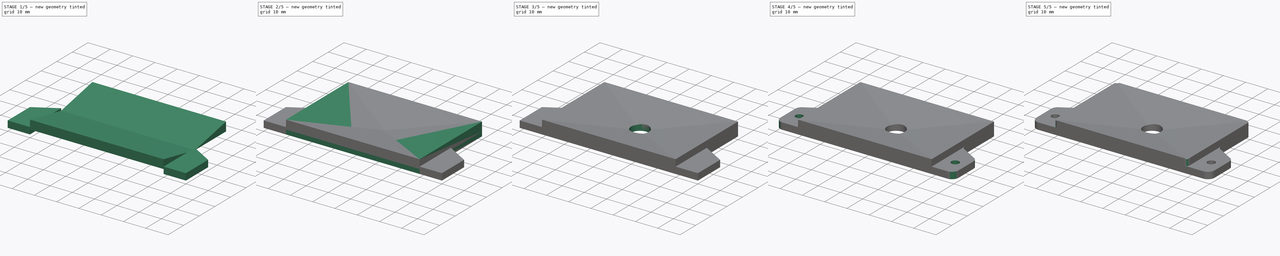
[diagram: build sequence overview — one tinted view per stage of 5, left to right]
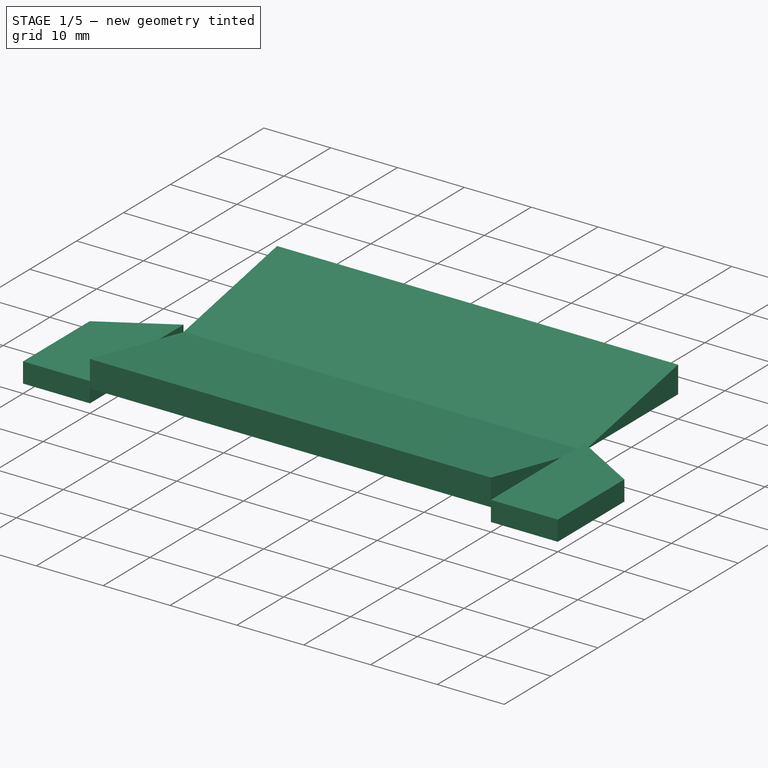
[diagram: stage 1 of 5 — iso view after this stage's code; geometry added in this stage tinted green]
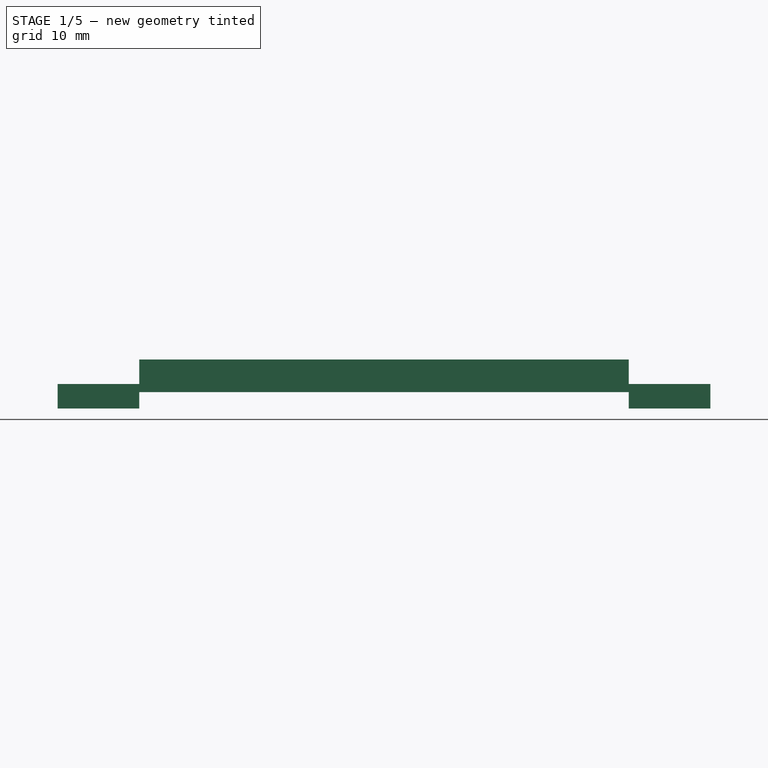
[diagram: stage 1 of 5 — front view after this stage's code; geometry added in this stage tinted green]
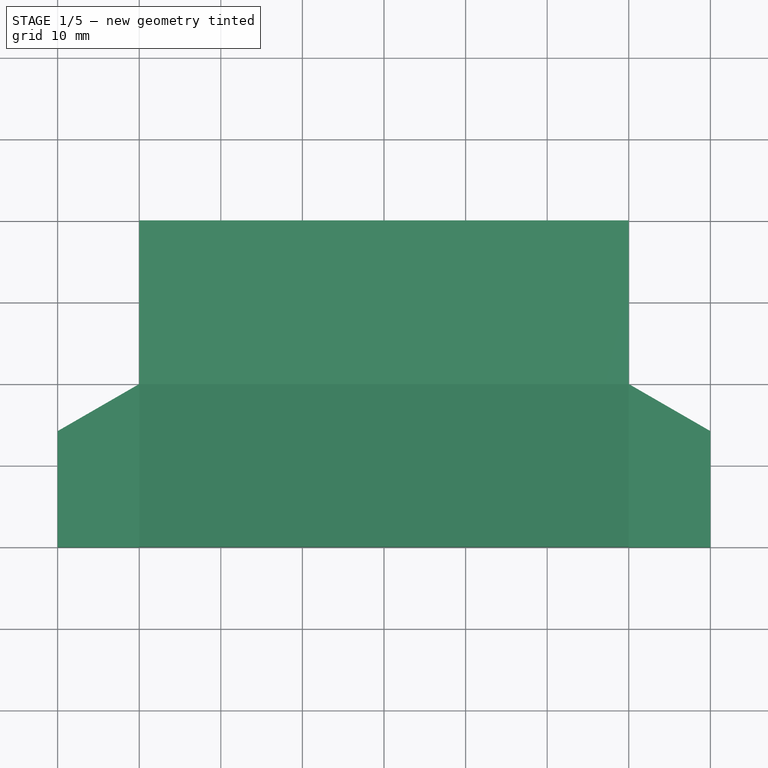
[diagram: stage 1 of 5 — top view after this stage's code; geometry added in this stage tinted green]
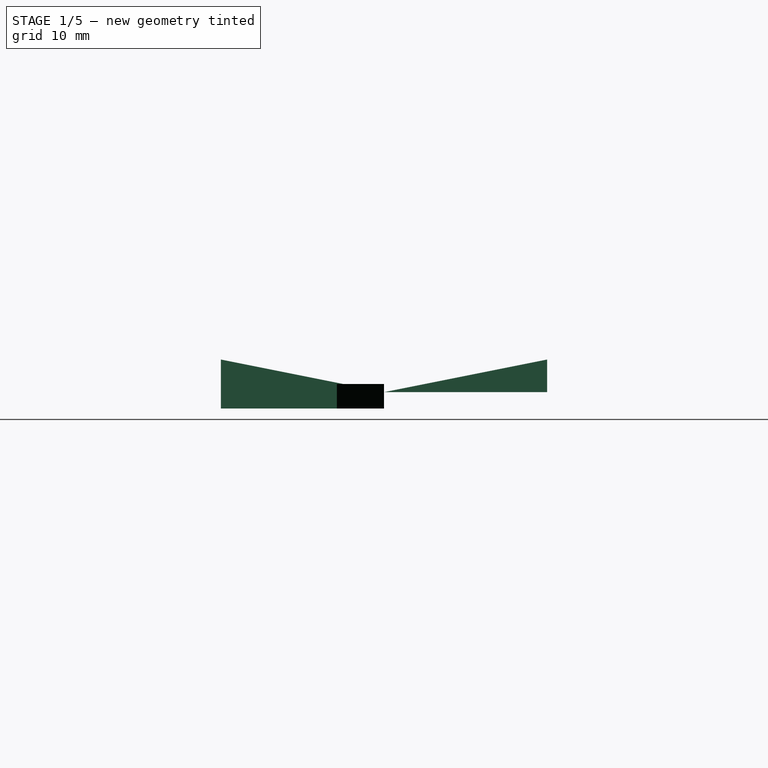
[diagram: stage 1 of 5 — right view after this stage's code; geometry added in this stage tinted green]
FCSTD DOCUMENT  (FreeCAD 0.18R4 (GitTag))
Label: Cameramodule_V03
License: All rights reserved
LicenseURL: http://en.wikipedia.org/wiki/All_rights_reserved
objects: PartDesign::Body×8, Sketcher::SketchObject×7, PartDesign::Pad×7, PartDesign::SubtractiveCylinder×7, PartDesign::Boolean×6, App::MeasureDistance×5, PartDesign::Fillet×2
note: 51 computed .brp shape members not serialized (recipe doc carries the construction recipe); baked Part::Feature solids carry a one-line shape summary decoded from their .brp

FEATURE [PartDesign::Body] Body002
  Group = -> [Sketch002,Pad002,Boolean001]
  Origin = -> Origin002
  Tip = -> Boolean001
FEATURE [Sketcher::SketchObject] Sketch003
  Placement = pos=(0,0,0) rot=(0.57735,0.57735,0.57735;2.0944rad)
  sketch-geometry (3):
    g0: LineSegment StartX=0 StartY=6 StartZ=0 EndX=0 EndY=2 EndZ=0
    g1: LineSegment StartX=0 StartY=2 StartZ=0 EndX=20 EndY=2 EndZ=0
    g2: LineSegment StartX=20 StartY=2 StartZ=0 EndX=0 EndY=6 EndZ=0
  constraints (9):
    c: Coincident(g0,g1)
    c: Coincident(g1,g2)
    c: Coincident(g2,g0)
    c: Vertical(g0)
    c: Horizontal(g1)
    c: PointOnObject(g0,g-2)
    c: Distance(g0) = 4
    c: Distance(g1) = 20
    c: Distance(g-1,g0) = 2
FEATURE [PartDesign::Pad] Pad003
  Length = 60
  Length2 = 100
  Placement = pos=(0,0,0) rot=(0.57735,0.57735,0.57735;2.0944rad)
  Profile = -> Sketch003
  Type = 0
FEATURE [Sketcher::SketchObject] Sketch004
  Placement = pos=(0,0,0) rot=(0.57735,0.57735,0.57735;2.0944rad)
  sketch-geometry (3):
    g0: LineSegment StartX=40 StartY=2 StartZ=0 EndX=40 EndY=6 EndZ=0
    g1: LineSegment StartX=40 StartY=6 StartZ=0 EndX=20 EndY=2 EndZ=0
    g2: LineSegment StartX=20 StartY=2 StartZ=0 EndX=40 EndY=2 EndZ=0
  constraints (9):
    c: Coincident(g0,g1)
    c: Coincident(g1,g2)
    c: Coincident(g2,g0)
    c: Vertical(g0)
    c: Horizontal(g2)
    c: Distance(g0) = 4
    c: Distance(g2) = 20
    c: DistanceX(g-2,g0) = 40
    c: DistanceY(g-1,g0) = 2
FEATURE [PartDesign::Pad] Pad004
  Length = 60
  Length2 = 100
  Placement = pos=(0,0,0) rot=(0.57735,0.57735,0.57735;2.0944rad)
  Profile = -> Sketch004
  Type = 0
FEATURE [PartDesign::Body] Body003
  Group = -> [Sketch003,Pad003,Boolean002,Boolean003,Cylinder]
  Origin = -> Origin003
  Tip = -> Cylinder
FEATURE [Sketcher::SketchObject] Sketch005
  sketch-geometry (4):
    g0: LineSegment StartX=60 StartY=0 StartZ=0 EndX=60 EndY=20 EndZ=0
    g1: LineSegment StartX=60 StartY=20 StartZ=0 EndX=70 EndY=14.2265 EndZ=0
    g2: LineSegment StartX=70 StartY=14.2265 StartZ=0 EndX=70 EndY=0 EndZ=0
    g3: LineSegment StartX=70 StartY=0 StartZ=0 EndX=60 EndY=0 EndZ=0
  constraints (12):
    c: Coincident(g0,g1)
    c: Coincident(g1,g2)
    c: Coincident(g2,g3)
    c: Coincident(g3,g0)
    c: Vertical(g0)
    c: Horizontal(g3)
    c: Vertical(g2)
    c: Angle(g1,g2) = 2.0944
    c: Distance(g-1,g0) = 60
    c: PointOnObject(g0,g-1)
    c: Distance(g0) = 20
    c: Distance(g3) = 10
FEATURE [PartDesign::Pad] Pad005
  Length = 3
  Length2 = 100
  Profile = -> Sketch005
  Type = 0
FEATURE [PartDesign::Body] Body006
  Group = -> [Sketch005,Pad005,Boolean004]
  Origin = -> Origin006
  Tip = -> Boolean004
FEATURE [Sketcher::SketchObject] Sketch006
  sketch-geometry (4):
    g0: LineSegment StartX=0 StartY=0 StartZ=0 EndX=-10 EndY=0 EndZ=0
    g1: LineSegment StartX=-10 StartY=0 StartZ=0 EndX=-10 EndY=14.2265 EndZ=0
    g2: LineSegment StartX=-10 StartY=14.2265 StartZ=0 EndX=0 EndY=20 EndZ=0
    g3: LineSegment StartX=0 StartY=20 StartZ=0 EndX=0 EndY=0 EndZ=0
  constraints (12):
    c: Coincident(g0,g1)
    c: Coincident(g1,g2)
    c: Coincident(g2,g3)
    c: Vertical(g1)
    c: Vertical(g3)
    c: Horizontal(g0)
    c: Coincident(g3,g0)
    c: Angle(g1,g2) = 2.0944
    c: Distance(g3) = 20
    c: Distance(g0) = 10
    c: PointOnObject(g0,g-1)
    c: PointOnObject(g2,g-2)
FEATURE [PartDesign::Pad] Pad006
  Length = 3
  Length2 = 100
  Profile = -> Sketch006
  Type = 0
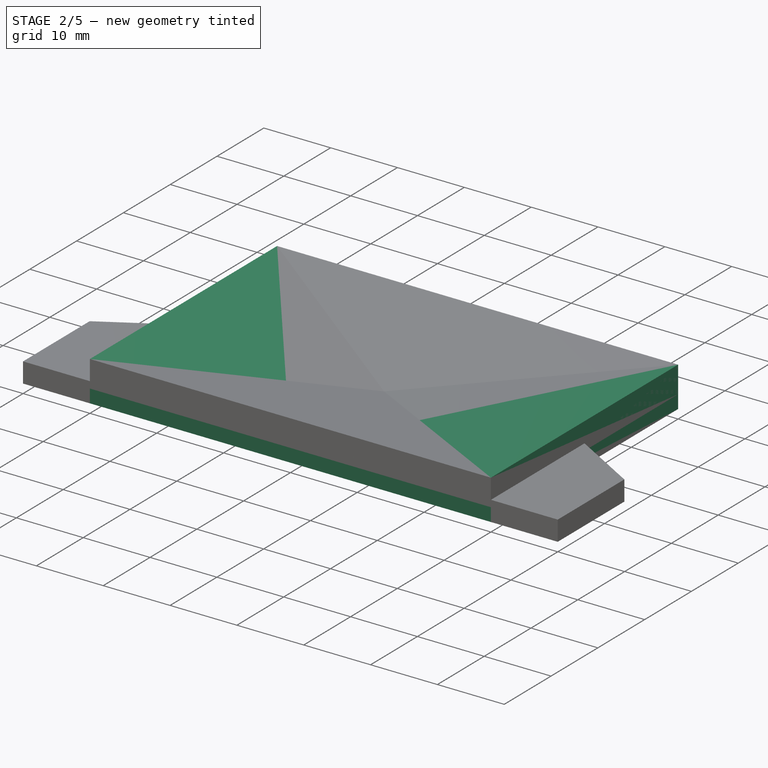
[diagram: stage 2 of 5 — iso view after this stage's code; geometry added in this stage tinted green]
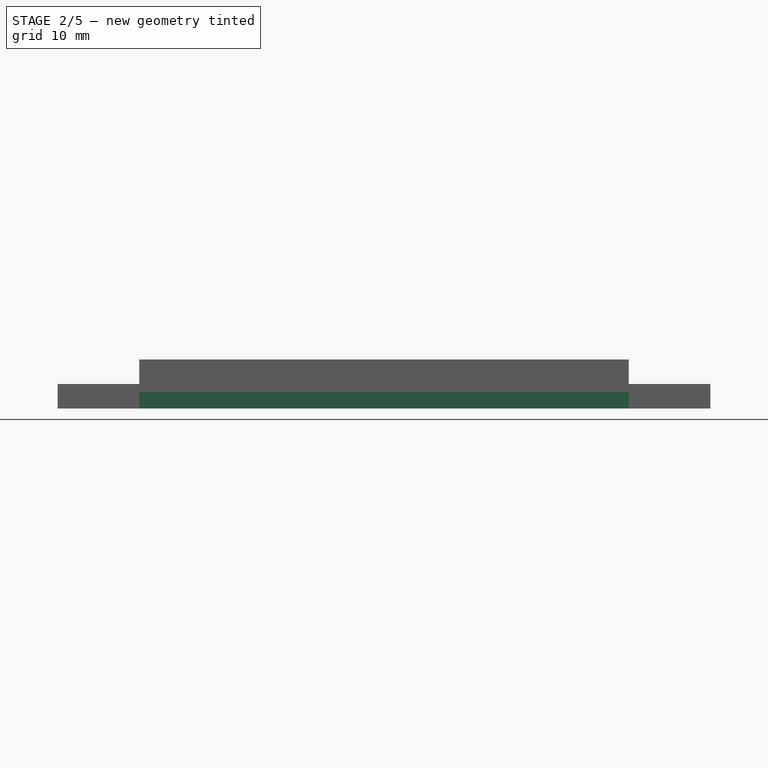
[diagram: stage 2 of 5 — front view after this stage's code; geometry added in this stage tinted green]
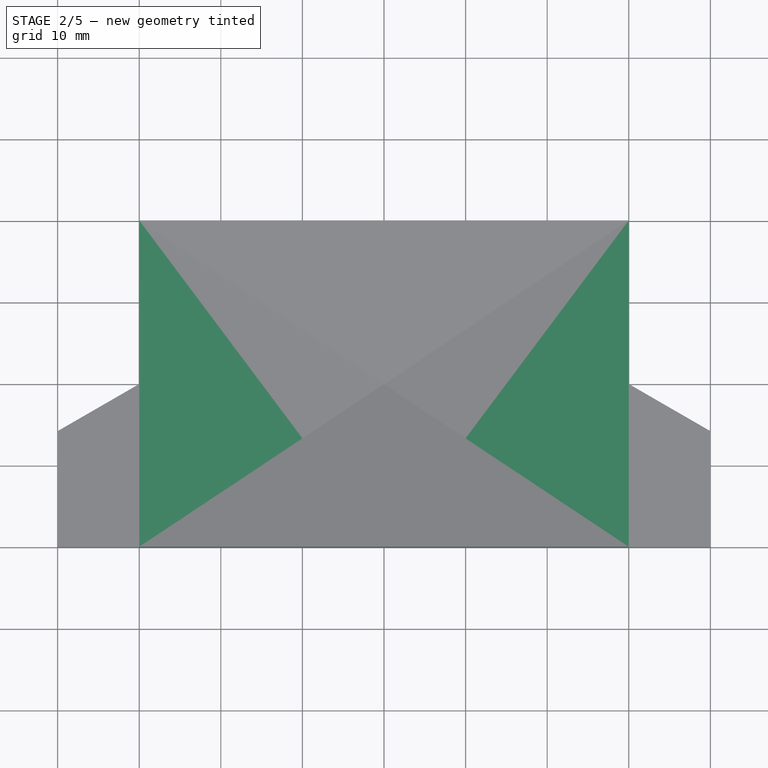
[diagram: stage 2 of 5 — top view after this stage's code; geometry added in this stage tinted green]
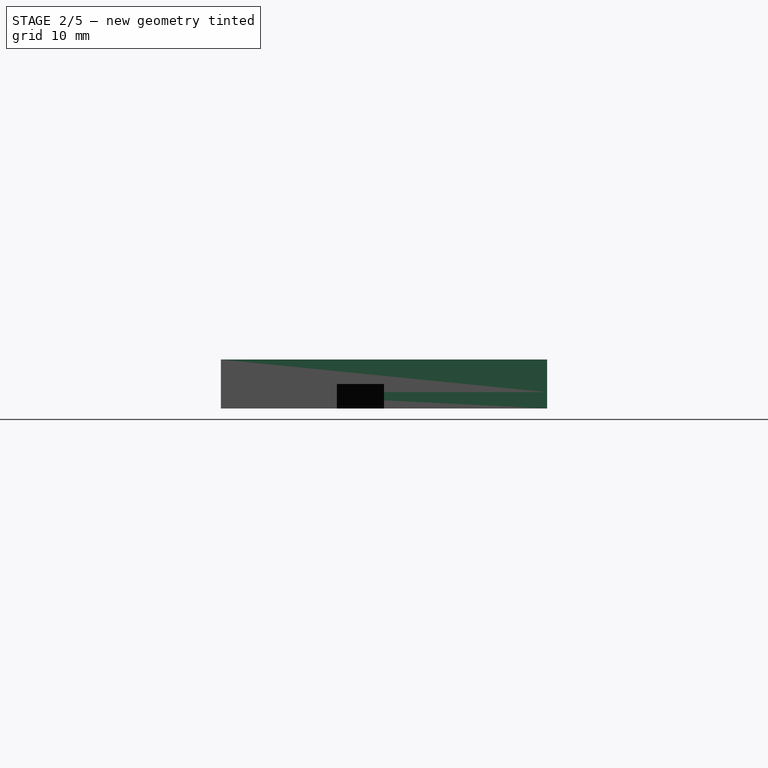
[diagram: stage 2 of 5 — right view after this stage's code; geometry added in this stage tinted green]
FEATURE [Sketcher::SketchObject] Sketch
  sketch-geometry (4):
    g0: LineSegment StartX=0 StartY=0 StartZ=0 EndX=60 EndY=0 EndZ=0
    g1: LineSegment StartX=60 StartY=0 StartZ=0 EndX=60 EndY=40 EndZ=0
    g2: LineSegment StartX=60 StartY=40 StartZ=0 EndX=0 EndY=40 EndZ=0
    g3: LineSegment StartX=0 StartY=40 StartZ=0 EndX=0 EndY=0 EndZ=0
  constraints (11):
    c: Coincident(g0,g1)
    c: Coincident(g1,g2)
    c: Coincident(g2,g3)
    c: Coincident(g3,g0)
    c: Horizontal(g0)
    c: Horizontal(g2)
    c: Vertical(g1)
    c: Vertical(g3)
    c: Distance(g3) = 40
    c: Distance(g2) = 60
    c: Coincident(g0,g-1)
FEATURE [PartDesign::Pad] Pad
  Length = 2
  Length2 = 100
  Profile = -> Sketch
  Type = 0
FEATURE [PartDesign::Body] Body
  Group = -> [Pad]
  Origin = -> Origin
  Tip = -> Pad
FEATURE [Sketcher::SketchObject] Sketch001
  Placement = pos=(0,0,0) rot=(1,0,0;1.5708rad)
  sketch-geometry (3):
    g0: LineSegment StartX=0 StartY=2 StartZ=0 EndX=0 EndY=6 EndZ=0
    g1: LineSegment StartX=0 StartY=6 StartZ=0 EndX=30 EndY=2 EndZ=0
    g2: LineSegment StartX=30 StartY=2 StartZ=0 EndX=0 EndY=2 EndZ=0
  constraints (9):
    c: Coincident(g0,g1)
    c: Coincident(g1,g2)
    c: Coincident(g2,g0)
    c: Distance(g0,g-1) = 2
    c: PointOnObject(g0,g-2)
    c: Vertical(g0)
    c: Horizontal(g2)
    c: Distance(g2) = 30
    c: Distance(g0) = 4
FEATURE [PartDesign::Pad] Pad001
  Length = 40
  Length2 = 100
  Placement = pos=(0,0,0) rot=(1,0,0;1.5708rad)
  Profile = -> Sketch001
  Reversed = true
  Type = 0
FEATURE [PartDesign::Boolean] Boolean
  BaseFeature = -> Pad001
  Group = -> [Body]
  Type = 0
FEATURE [PartDesign::Body] Body001
  Group = -> [Pad001,Sketch001,Boolean]
  Origin = -> Origin001
  Tip = -> Boolean
FEATURE [Sketcher::SketchObject] Sketch002
  Placement = pos=(0,0,0) rot=(1,0,0;1.5708rad)
  sketch-geometry (3):
    g0: LineSegment StartX=30 StartY=2 StartZ=0 EndX=60 EndY=6 EndZ=0
    g1: LineSegment StartX=60 StartY=6 StartZ=0 EndX=60 EndY=2 EndZ=0
    g2: LineSegment StartX=60 StartY=2 StartZ=0 EndX=30 EndY=2 EndZ=0
  constraints (9):
    c: Coincident(g0,g1)
    c: Coincident(g1,g2)
    c: Coincident(g2,g0)
    c: DistanceY(g-1,g1) = 2
    c: Horizontal(g2)
    c: Distance(g2) = 30
    c: DistanceX(g-2,g0) = 30
    c: Vertical(g1)
    c: Distance(g1) = 4
FEATURE [PartDesign::Pad] Pad002
  Length = 40
  Length2 = 100
  Placement = pos=(0,0,0) rot=(1,0,0;1.5708rad)
  Profile = -> Sketch002
  Reversed = true
  Type = 0
FEATURE [PartDesign::Boolean] Boolean001
  BaseFeature = -> Pad002
  Group = -> [Body001]
  Type = 0
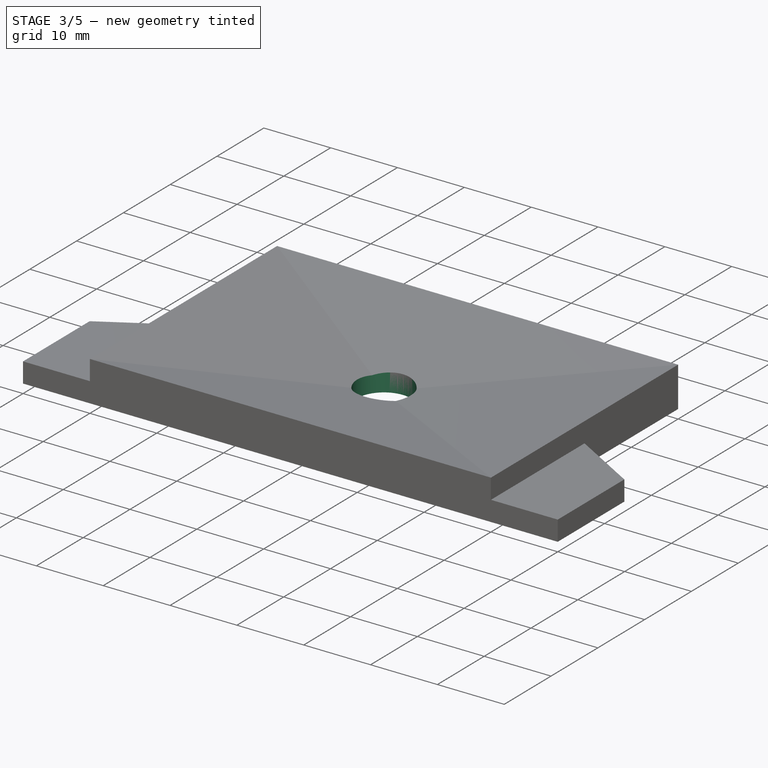
[diagram: stage 3 of 5 — iso view after this stage's code; geometry added in this stage tinted green]
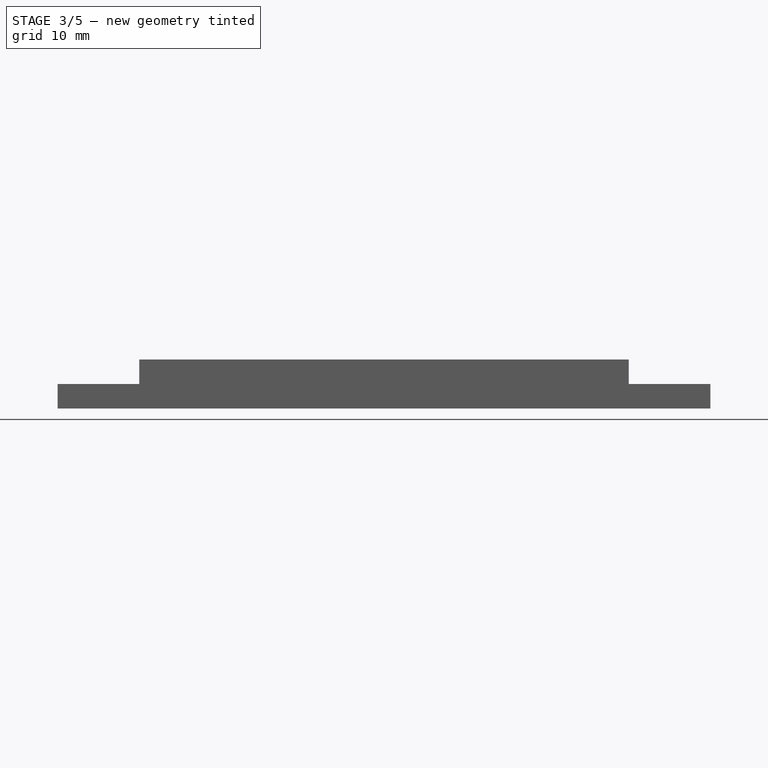
[diagram: stage 3 of 5 — front view after this stage's code; geometry added in this stage tinted green]
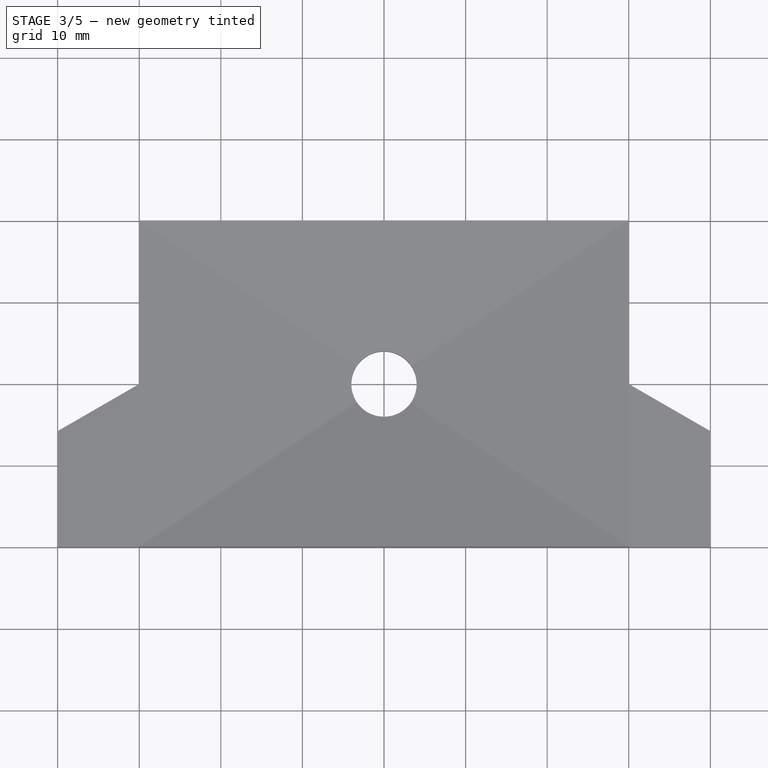
[diagram: stage 3 of 5 — top view after this stage's code; geometry added in this stage tinted green]
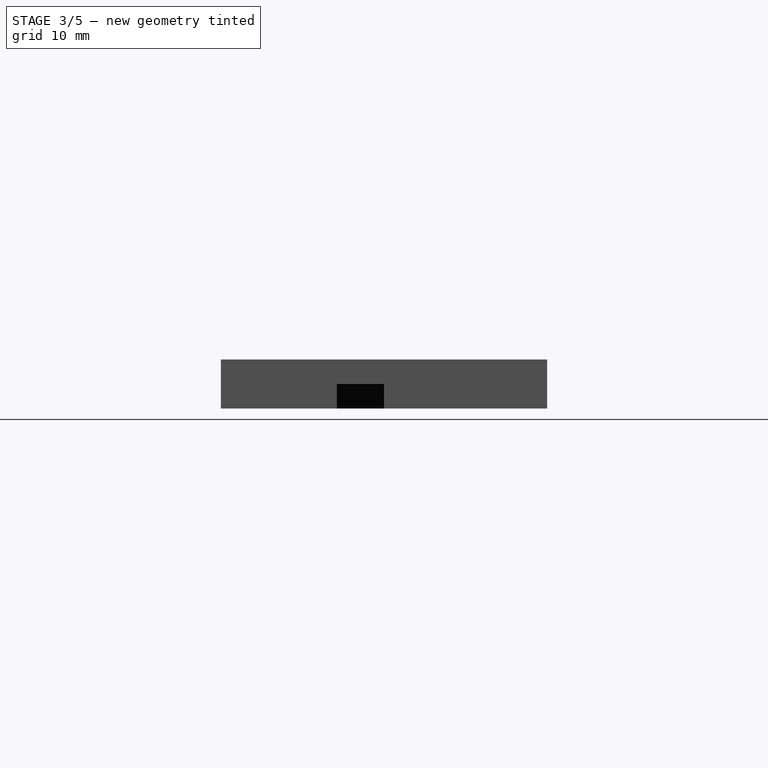
[diagram: stage 3 of 5 — right view after this stage's code; geometry added in this stage tinted green]
FEATURE [PartDesign::Boolean] Boolean002
  BaseFeature = -> Pad003
  Group = -> [Body002]
  Type = 0
FEATURE [PartDesign::Body] Body004
  Group = -> [Sketch004,Pad004]
  Origin = -> Origin004
  Tip = -> Pad004
FEATURE [PartDesign::Boolean] Boolean003
  BaseFeature = -> Boolean002
  Group = -> [Body004]
  Type = 0
FEATURE [PartDesign::SubtractiveCylinder] Cylinder
  Angle = 360
  AttacherType = Attacher::AttachEngine3D
  AttachmentOffset = pos=(-30,-20,0) rot=(0,0,1;0rad)
  BaseFeature = -> Boolean003
  Height = 10
  MapMode = 5
  Placement = pos=(30,20,0) rot=(0,0,1;3.14159rad)
  Radius = 4
  Support = -> [Boolean003]
FEATURE [PartDesign::Boolean] Boolean004
  BaseFeature = -> Pad005
  Group = -> [Body003]
  Type = 0
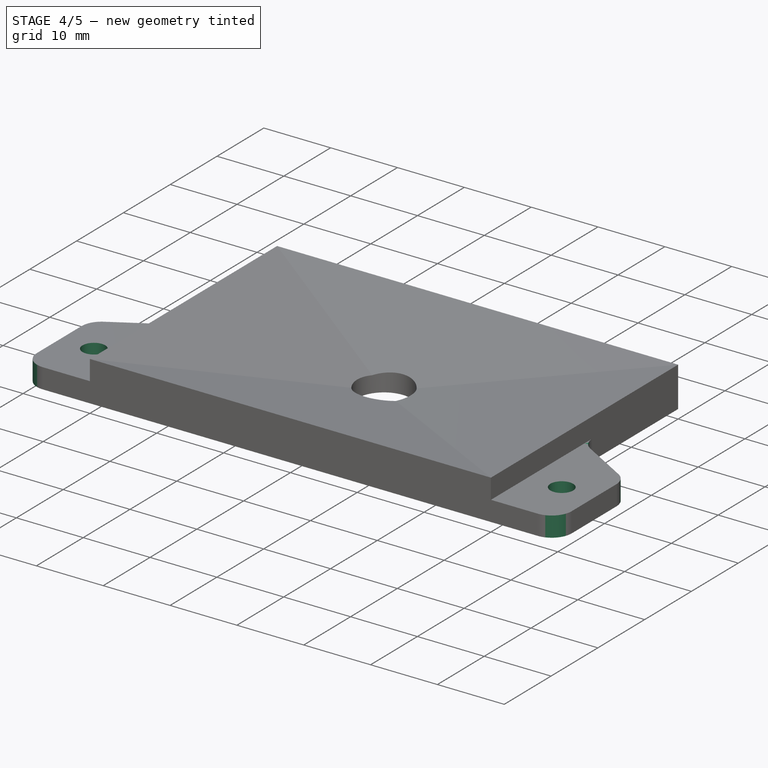
[diagram: stage 4 of 5 — iso view after this stage's code; geometry added in this stage tinted green]
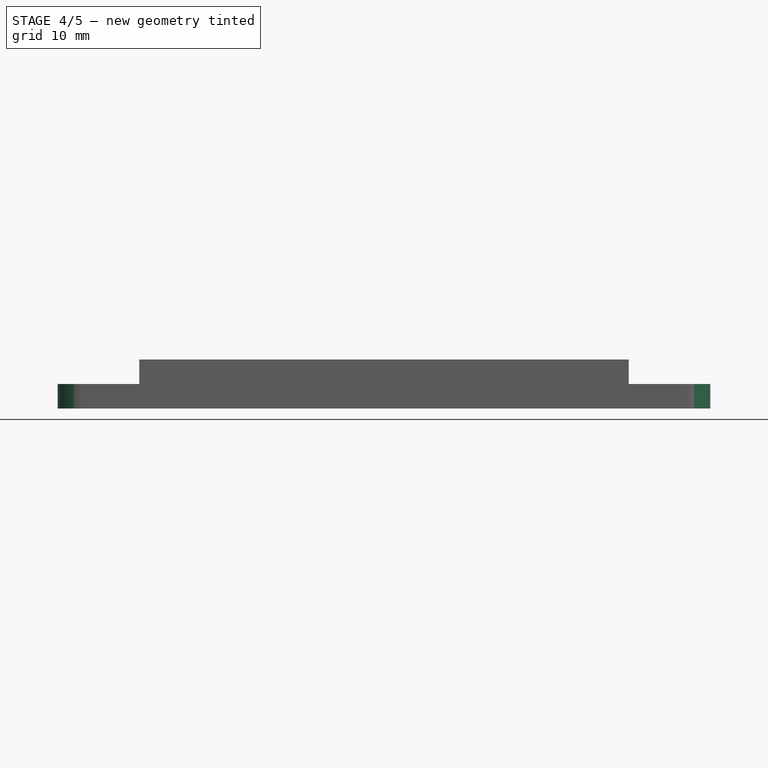
[diagram: stage 4 of 5 — front view after this stage's code; geometry added in this stage tinted green]
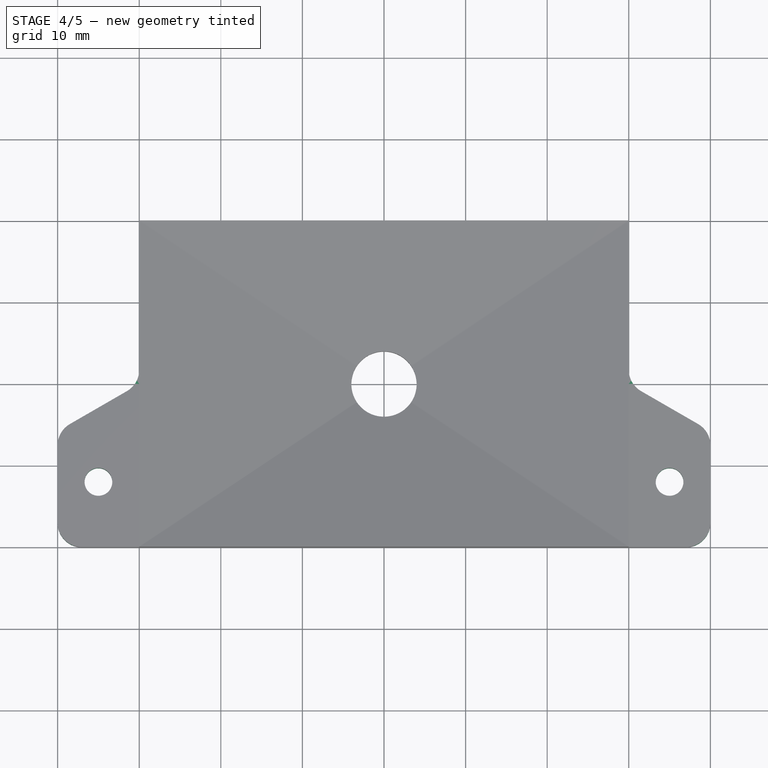
[diagram: stage 4 of 5 — top view after this stage's code; geometry added in this stage tinted green]
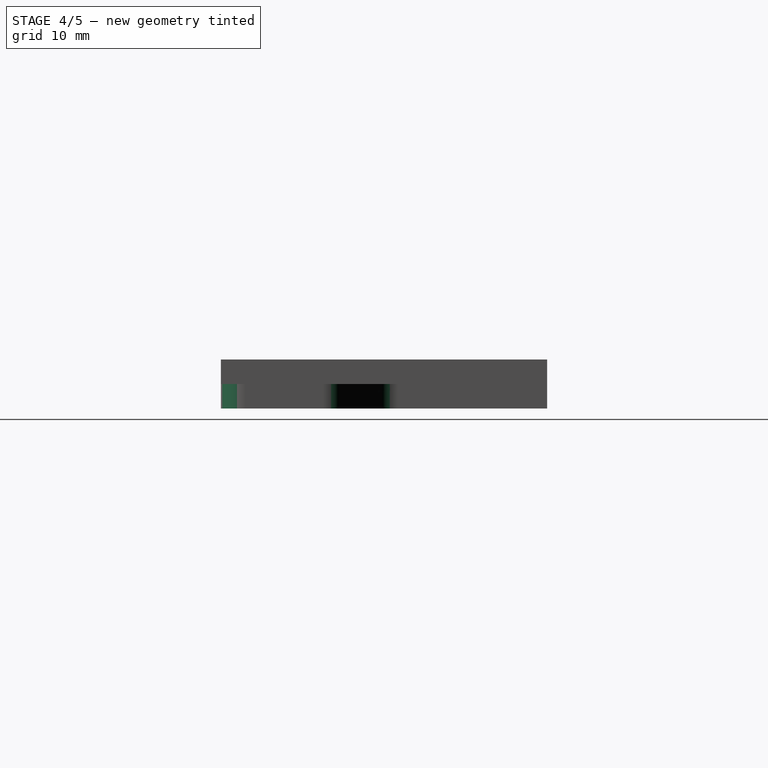
[diagram: stage 4 of 5 — right view after this stage's code; geometry added in this stage tinted green]
FEATURE [PartDesign::Boolean] Boolean005
  BaseFeature = -> Pad006
  Group = -> [Body006]
  Type = 0
FEATURE [PartDesign::Fillet] Fillet
  Base = -> Boolean005 [Edge20,Edge3,Edge12,Edge37,Edge62,Edge33]
  BaseFeature = -> Boolean005
  Radius = 3
FEATURE [PartDesign::SubtractiveCylinder] Cylinder001
  Angle = 360
  AttacherType = Attacher::AttachEngine3D
  AttachmentOffset = pos=(-65,-8,0) rot=(0,0,1;0rad)
  BaseFeature = -> Fillet
  Height = 10
  MapMode = 5
  Placement = pos=(65,8,0) rot=(0,0,1;3.14159rad)
  Radius = 1.7
  Support = -> [Fillet]
FEATURE [PartDesign::SubtractiveCylinder] Cylinder002
  Angle = 360
  AttacherType = Attacher::AttachEngine3D
  AttachmentOffset = pos=(-70,0,0) rot=(0,0,1;0rad)
  BaseFeature = -> Cylinder001
  Height = 10
  MapMode = 5
  Placement = pos=(-5,8,0) rot=(0,0,1;0rad)
  Radius = 1.7
  Support = -> [Cylinder001]
FEATURE [PartDesign::Body] Body008
  Origin = -> Origin008
FEATURE [App::MeasureDistance] Distance  label="Distance: 8,00 mm"
  Distance = 7.99809
  P1 = (33.3452,17.8103,2.44603)
  P2 = (26.6718,22.2188,2.44376)
FEATURE [App::MeasureDistance] Distance001  label="Distance: 3,42 mm"
  Distance = 3.41863
  P1 = (64.9886,6.3124,3)
  P2 = (65.1222,9.72841,3)
FEATURE [PartDesign::SubtractiveCylinder] Cylinder003
  Angle = 360
  AttacherType = Attacher::AttachEngine3D
  AttachmentOffset = pos=(0.05,10.5,0) rot=(0,0,1;0rad)
  BaseFeature = -> Cylinder002
  Height = 3
  MapMode = 45
  Placement = pos=(19.5,20.05,0) rot=(0,0,1;1.5708rad)
  Radius = 0.9
  Support = -> [Cylinder002]
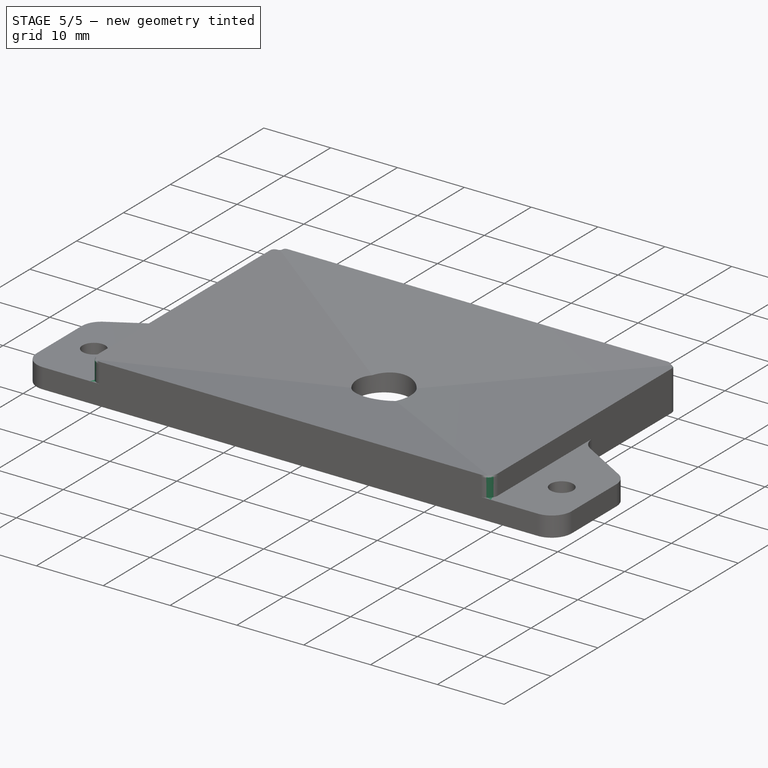
[diagram: stage 5 of 5 — iso view after this stage's code; geometry added in this stage tinted green]
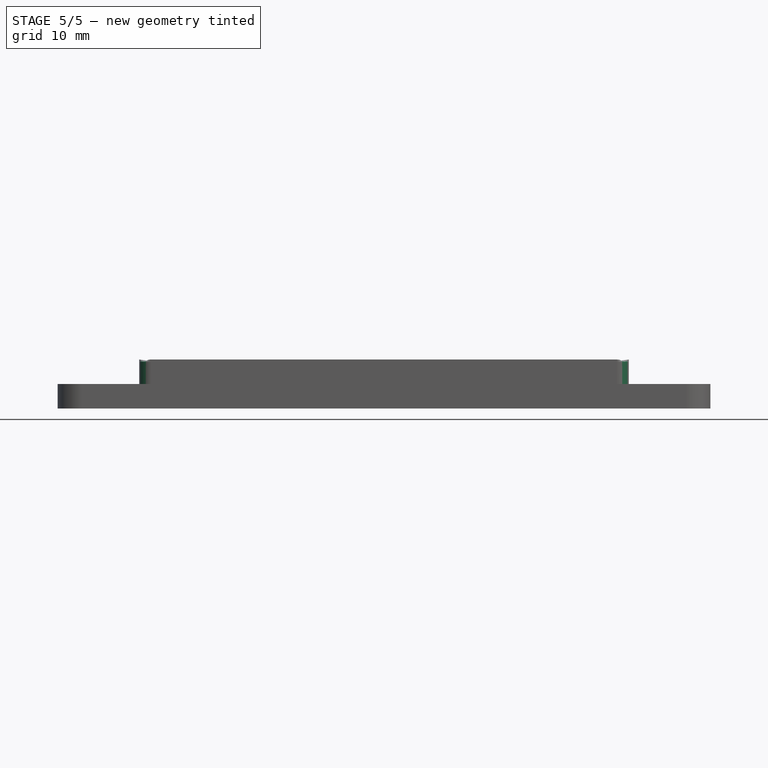
[diagram: stage 5 of 5 — front view after this stage's code; geometry added in this stage tinted green]
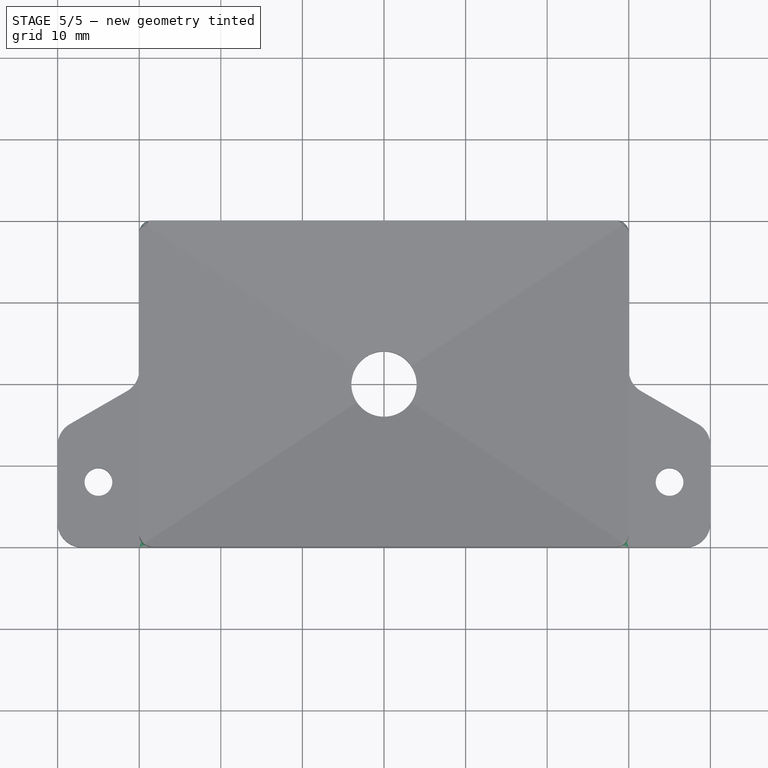
[diagram: stage 5 of 5 — top view after this stage's code; geometry added in this stage tinted green]
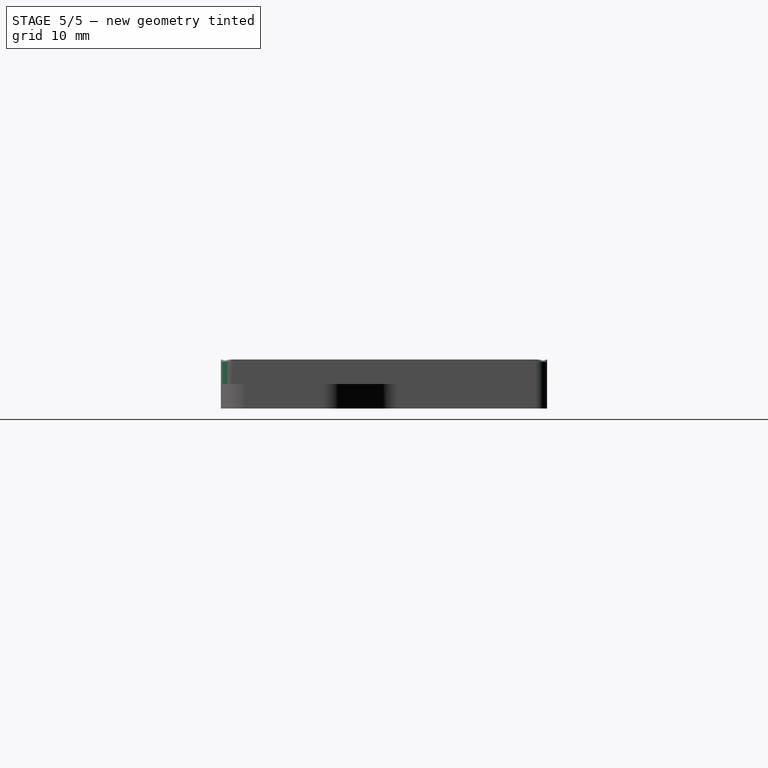
[diagram: stage 5 of 5 — right view after this stage's code; geometry added in this stage tinted green]
FEATURE [App::MeasureDistance] Distance002  label="Distance: 1,99 mm"
  Distance = 1.99274
  P1 = (60,3.8147e-06,0.0358669)
  P2 = (60,3.8147e-06,2.02861)
FEATURE [App::MeasureDistance] Distance003  label="Distance: 5,99 mm"
  Distance = 5.98797
  P1 = (60,3.8147e-06,6)
  P2 = (59.9089,3.8147e-06,0.012725)
FEATURE [PartDesign::SubtractiveCylinder] Cylinder004
  Angle = 360
  AttacherType = Attacher::AttachEngine3D
  AttachmentOffset = pos=(0.05,21,0) rot=(0,0,1;0rad)
  BaseFeature = -> Cylinder003
  Height = 3
  MapMode = 5
  Placement = pos=(40.5,20,0) rot=(0,0,-1;1.5708rad)
  Radius = 0.9
  Support = -> [Cylinder003]
FEATURE [PartDesign::SubtractiveCylinder] Cylinder005
  Angle = 360
  AttacherType = Attacher::AttachEngine3D
  AttachmentOffset = pos=(-12.5,0,0) rot=(0,0,1;0rad)
  BaseFeature = -> Cylinder004
  Height = 3
  MapMode = 5
  Placement = pos=(40.5,7.5,0) rot=(0,0,1;1.5708rad)
  Radius = 0.9
  Support = -> [Cylinder004]
FEATURE [PartDesign::SubtractiveCylinder] Cylinder006
  Angle = 360
  AttacherType = Attacher::AttachEngine3D
  AttachmentOffset = pos=(0,-21,0) rot=(0,0,1;0rad)
  BaseFeature = -> Cylinder005
  Height = 3
  MapMode = 5
  Placement = pos=(19.5,7.5,0) rot=(0,0,-1;1.5708rad)
  Radius = 0.9
  Support = -> [Cylinder005]
FEATURE [PartDesign::Fillet] Fillet001
  Base = -> Cylinder006 [Edge104,Edge62,Edge99,Edge60,Edge28,Edge53]
  BaseFeature = -> Cylinder006
  Placement = pos=(19.5,7.5,0) rot=(0,0,-1;1.5708rad)
  Radius = 1.5
FEATURE [PartDesign::Body] Body007
  Group = -> [Sketch006,Pad006,Boolean005,Fillet,Cylinder001,Cylinder002,Cylinder003,Cylinder004,Cylinder005,Cylinder006,Fillet001]
  Origin = -> Origin007
  Tip = -> Fillet001
FEATURE [App::MeasureDistance] Distance004  label="Distance: 1,81 mm"
  Distance = 1.81479
  P1 = (19.2519,6.63486,0)
  P2 = (19.7237,8.38725,-9e-16)
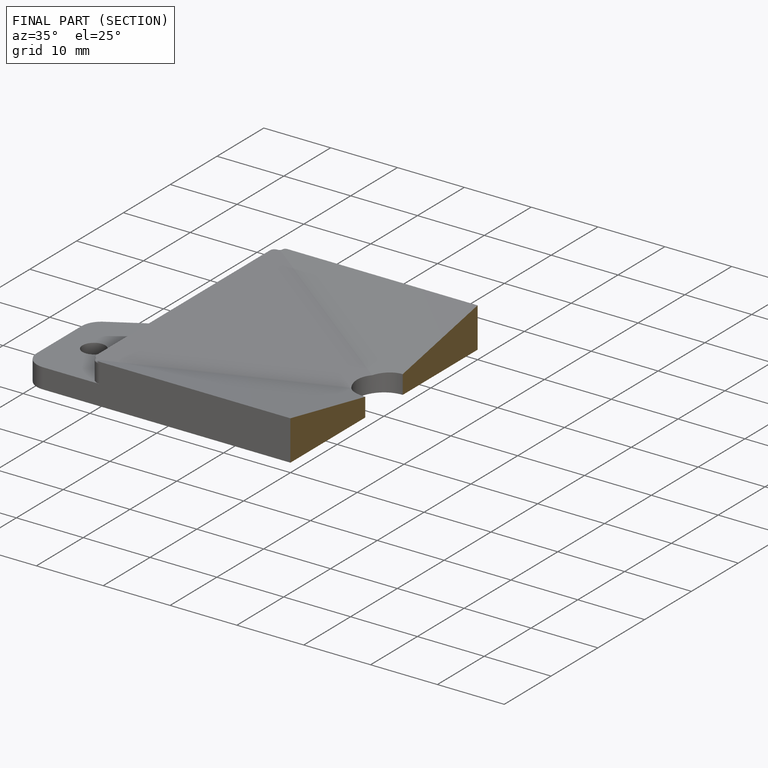
[diagram: finished part — half-section view (interior)]
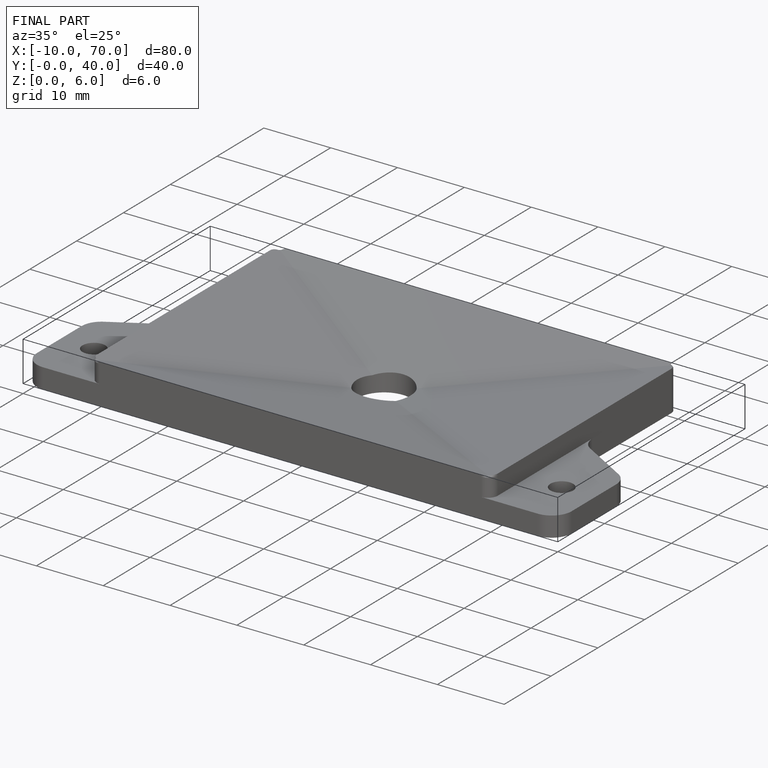
[diagram: finished part — iso view with bounding-box wireframe]
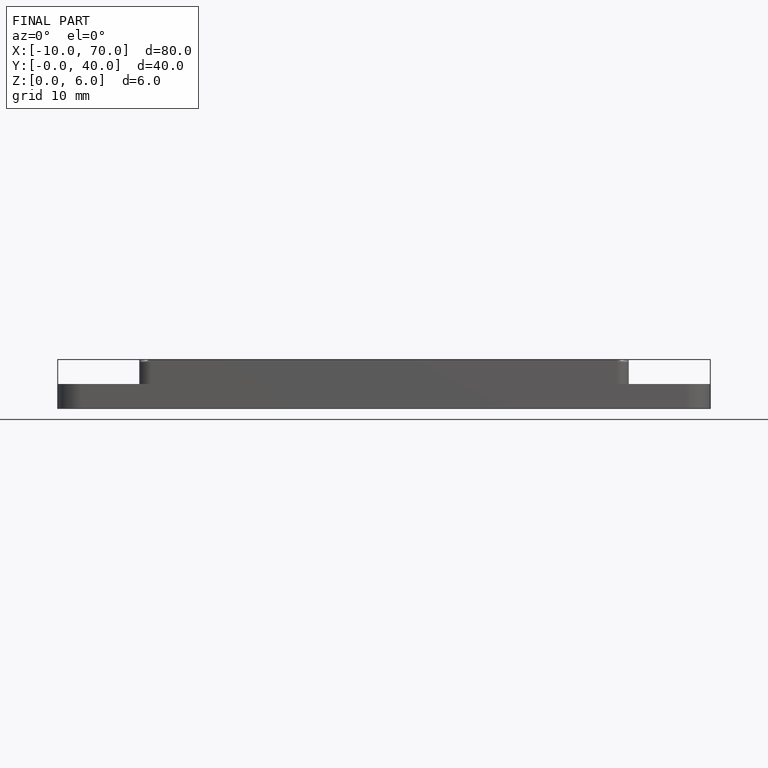
[diagram: finished part — front view with bounding-box wireframe]
